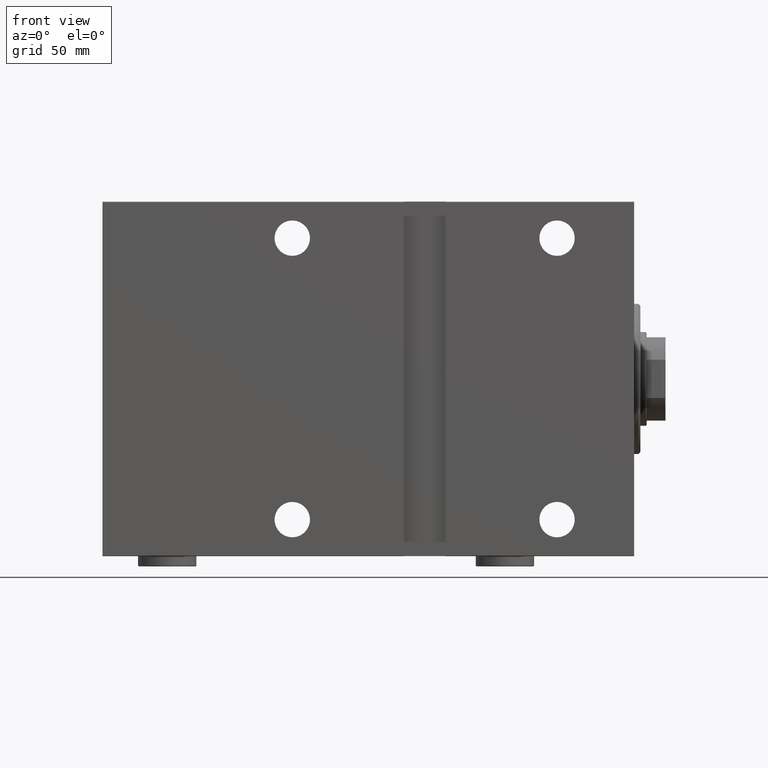
[diagram: clean part render]
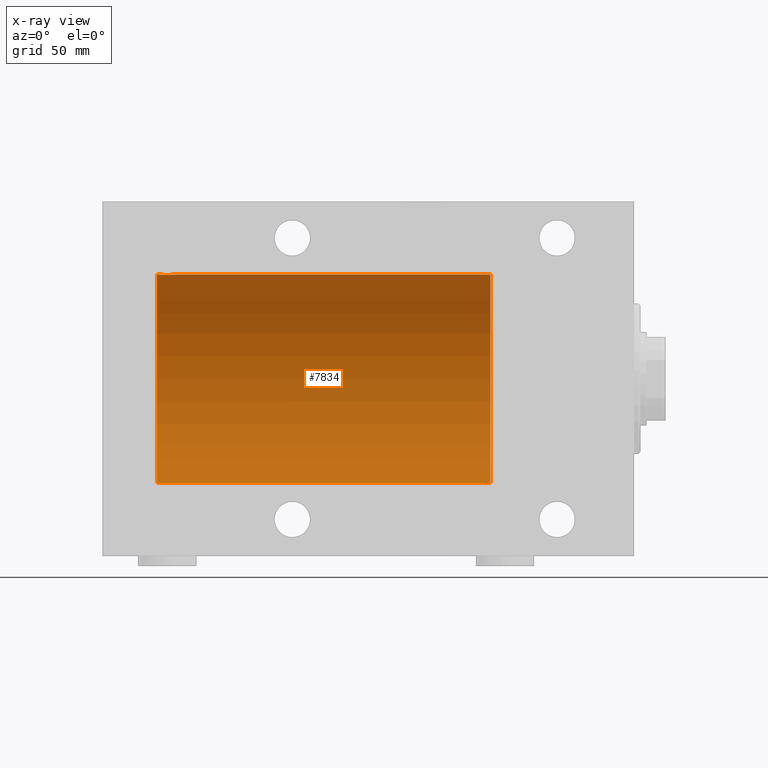
[diagram: x-ray — body ghosted, one internal face saturated and labeled with its STEP entity id]
A machine part, front view, then the same camera in x-ray: the body is ghosted and one INTERNAL B-rep face — a face not visible from any outside direction — is saturated and labeled: STEP entity #7834.
In plain terms, the highlighted cylindrical surface (partial cylindrical patch) has radius 50 mm, axis along (1, 0, -0).
Its self-contained STEP definition (entity closure, byte-faithful):
#269 = VERTEX_POINT ( 'NONE', #28648 ) ;
#1124 = B_SPLINE_CURVE_WITH_KNOTS ( 'NONE', 3,
 ( #30271, #37106, #30708, #40965, #9758, #30044, #26860, #9325, #20237, #43708, #19786, #16148, #5680, #23212, #36884, #43938, #12277, #5901, #26403, #22751, #16597, #27072, #19566, #33695, #34151, #33480, #36651, #12950, #2259, #40520, #44382, #12727, #26186, #2482 ),
 .UNSPECIFIED., .F., .F.,
 ( 4, 2, 2, 2, 2, 2, 2, 2, 2, 2, 2, 2, 2, 2, 2, 2, 4 ),
 ( 0.01329343152928752492, 0.01412407817529631217, 0.01495472482130509942, 0.01578537146731388494, 0.01661601811332267392, 0.01744666475933145944, 0.01827731140534024495, 0.01910795805134903047, 0.01993860469735781946, 0.02076925134336660844, 0.02159989798937539396, 0.02243054463538417947, 0.02326119128139296499, 0.02409183792740175398, 0.02492248457341053949, 0.02575313121941932848, 0.02658377786542811400 ),
 .UNSPECIFIED. ) ;
#1682 = FACE_OUTER_BOUND ( 'NONE', #14446, .T. ) ;
#1730 = CARTESIAN_POINT ( 'NONE',  ( 229.0000000000000000, 0.000000000000000000, 50.00000000000000000 ) ) ;
#2259 = CARTESIAN_POINT ( 'NONE',  ( 227.8183924898787609, -1.886522330773425793, 49.96505190380066352 ) ) ;
#2482 = CARTESIAN_POINT ( 'NONE',  ( 228.2500000000000284, 4.321082864718244794E-15, 50.00000000000000000 ) ) ;
#4475 = LINE ( 'NONE', #1730, #26799 ) ;
#5680 = CARTESIAN_POINT ( 'NONE',  ( 222.1125526060720290, -3.818052230167745531, 49.85412671291930309 ) ) ;
#5901 = CARTESIAN_POINT ( 'NONE',  ( 224.2772492703792011, -4.250219976861668414, 49.81902879621013369 ) ) ;
#7834 = ADVANCED_FACE ( 'NONE', ( #1682 ), #28360, .F. ) ;
#8504 = LINE ( 'NONE', #39251, #39585 ) ;
#9325 = CARTESIAN_POINT ( 'NONE',  ( 220.6211828273626452, -2.593114840406137933, 49.93325460257641879 ) ) ;
#9758 = CARTESIAN_POINT ( 'NONE',  ( 219.9672735790269087, -1.369753890039655309, 49.98188917176553048 ) ) ;
#10164 = DIRECTION ( 'NONE',  ( -1.000000000000000000, 0.000000000000000000, 0.000000000000000000 ) ) ;
#10894 = CARTESIAN_POINT ( 'NONE',  ( 229.0000000000000000, 0.000000000000000000, 50.00000000000000000 ) ) ;
#11038 = DIRECTION ( 'NONE',  ( -1.000000000000000000, -0.000000000000000000, -0.000000000000000000 ) ) ;
#11169 = VECTOR ( 'NONE', #27704, 1000.000000000000000 ) ;
#12180 = CIRCLE ( 'NONE', #16543, 50.00000000000000000 ) ;
#12277 = CARTESIAN_POINT ( 'NONE',  ( 223.7160471297329991, -4.249777379711427550, 49.81906655360197789 ) ) ;
#12387 = DIRECTION ( 'NONE',  ( 0.000000000000000000, 0.000000000000000000, 1.000000000000000000 ) ) ;
#12727 = CARTESIAN_POINT ( 'NONE',  ( 228.2224263552078014, -0.5587117664567152753, 49.99763378604802000 ) ) ;
#12950 = CARTESIAN_POINT ( 'NONE',  ( 227.6860283212195668, -2.133925816755196880, 49.95498245321557818 ) ) ;
#14446 = EDGE_LOOP ( 'NONE', ( #20163, #22105, #29640, #30129, #36320, #18817 ) ) ;
#14934 = VERTEX_POINT ( 'NONE', #37539 ) ;
#16148 = CARTESIAN_POINT ( 'NONE',  ( 221.8686360055384910, -3.687400765141549464, 49.86408552998298660 ) ) ;
#16258 = AXIS2_PLACEMENT_3D ( 'NONE', #25161, #11038, #12387 ) ;
#16543 = AXIS2_PLACEMENT_3D ( 'NONE', #36494, #36272, #43103 ) ;
#16597 = CARTESIAN_POINT ( 'NONE',  ( 225.3671064755457678, -4.033756670430872049, 49.83713703490974467 ) ) ;
#16990 = CARTESIAN_POINT ( 'NONE',  ( 229.0000000000000000, 6.123233995736764507E-15, -50.00000000000000000 ) ) ;
#17937 = CIRCLE ( 'NONE', #25229, 50.00000000000000000 ) ;
#18727 = CARTESIAN_POINT ( 'NONE',  ( 229.0000000000000000, 6.123233995736764507E-15, -50.00000000000000000 ) ) ;
#18817 = ORIENTED_EDGE ( 'NONE', *, *, #34957, .F. ) ;
#19566 = CARTESIAN_POINT ( 'NONE',  ( 226.1263164487508277, -3.690299572754739188, 49.86386974736159061 ) ) ;
#19730 = VERTEX_POINT ( 'NONE', #20407 ) ;
#19786 = CARTESIAN_POINT ( 'NONE',  ( 221.4068727911404721, -3.378657745070641205, 49.88595615988430154 ) ) ;
#19807 = EDGE_CURVE ( 'NONE', #35305, #19730, #17937, .T. ) ;
#20163 = ORIENTED_EDGE ( 'NONE', *, *, #21288, .F. ) ;
#20237 = CARTESIAN_POINT ( 'NONE',  ( 220.7969643804801194, -2.807099414226288836, 49.92152599098506727 ) ) ;
#20407 = CARTESIAN_POINT ( 'NONE',  ( 69.00000000000000000, 0.000000000000000000, 50.00000000000000000 ) ) ;
#20458 = VERTEX_POINT ( 'NONE', #18727 ) ;
#21288 = EDGE_CURVE ( 'NONE', #20458, #32090, #12180, .T. ) ;
#22105 = ORIENTED_EDGE ( 'NONE', *, *, #33760, .T. ) ;
#22751 = CARTESIAN_POINT ( 'NONE',  ( 225.0973761787904550, -4.115209769591128719, 49.83039196709102470 ) ) ;
#23212 = CARTESIAN_POINT ( 'NONE',  ( 222.6266656342097008, -4.031616700143211496, 49.83731072121799599 ) ) ;
#24642 = CARTESIAN_POINT ( 'NONE',  ( 69.00000000000000000, 6.123233995736764507E-15, -50.00000000000000000 ) ) ;
#24906 = EDGE_CURVE ( 'NONE', #14934, #19730, #4475, .T. ) ;
#25161 = CARTESIAN_POINT ( 'NONE',  ( 229.0000000000000000, 0.000000000000000000, 0.000000000000000000 ) ) ;
#25229 = AXIS2_PLACEMENT_3D ( 'NONE', #45013, #10164, #37944 ) ;
#25438 = DIRECTION ( 'NONE',  ( -1.000000000000000000, -0.000000000000000000, -0.000000000000000000 ) ) ;
#26186 = CARTESIAN_POINT ( 'NONE',  ( 228.2500000000000568, -0.2808785465865656361, 50.00000000000001421 ) ) ;
#26403 = CARTESIAN_POINT ( 'NONE',  ( 224.5540856488015322, -4.222816005855229093, 49.82138837911247009 ) ) ;
#26799 = VECTOR ( 'NONE', #25438, 1000.000000000000000 ) ;
#26860 = CARTESIAN_POINT ( 'NONE',  ( 220.3106284432061841, -2.128188802142371383, 49.95522967821975158 ) ) ;
#27072 = CARTESIAN_POINT ( 'NONE',  ( 225.8821704948444733, -3.820681512513403710, 49.85392475515401145 ) ) ;
#27704 = DIRECTION ( 'NONE',  ( -1.000000000000000000, -0.000000000000000000, -0.000000000000000000 ) ) ;
#28360 = CYLINDRICAL_SURFACE ( 'NONE', #16258, 50.00000000000000000 ) ;
#28565 = EDGE_CURVE ( 'NONE', #14934, #269, #1124, .T. ) ;
#28648 = CARTESIAN_POINT ( 'NONE',  ( 228.2500000000000284, 4.321082864718244794E-15, 50.00000000000000000 ) ) ;
#29640 = ORIENTED_EDGE ( 'NONE', *, *, #19807, .T. ) ;
#30044 = CARTESIAN_POINT ( 'NONE',  ( 220.1789941801477539, -1.881229021238131516, 49.96525240872482954 ) ) ;
#30129 = ORIENTED_EDGE ( 'NONE', *, *, #24906, .F. ) ;
#30271 = CARTESIAN_POINT ( 'NONE',  ( 219.7500000000000284, -2.480218129060122167E-23, 50.00000000000000000 ) ) ;
#30708 = CARTESIAN_POINT ( 'NONE',  ( 219.7768924720100472, -0.5531336717329087271, 49.99769193709643389 ) ) ;
#32090 = VERTEX_POINT ( 'NONE', #10894 ) ;
#32651 = DIRECTION ( 'NONE',  ( -1.000000000000000000, -0.000000000000000000, -0.000000000000000000 ) ) ;
#33480 = CARTESIAN_POINT ( 'NONE',  ( 227.1992192796128620, -2.811461347331117633, 49.92127983148852621 ) ) ;
#33695 = CARTESIAN_POINT ( 'NONE',  ( 226.5882021467620859, -3.382416624899796442, 49.88570010427955737 ) ) ;
#33760 = EDGE_CURVE ( 'NONE', #20458, #35305, #38178, .T. ) ;
#34151 = CARTESIAN_POINT ( 'NONE',  ( 226.8069783183931349, -3.203153387937335506, 49.89767833571684008 ) ) ;
#34957 = EDGE_CURVE ( 'NONE', #32090, #269, #8504, .T. ) ;
#35305 = VERTEX_POINT ( 'NONE', #24642 ) ;
#36272 = DIRECTION ( 'NONE',  ( -1.000000000000000000, 0.000000000000000000, 0.000000000000000000 ) ) ;
#36320 = ORIENTED_EDGE ( 'NONE', *, *, #28565, .T. ) ;
#36494 = CARTESIAN_POINT ( 'NONE',  ( 229.0000000000000000, 0.000000000000000000, 0.000000000000000000 ) ) ;
#36651 = CARTESIAN_POINT ( 'NONE',  ( 227.3751998408197039, -2.597781786597482157, 49.93300953359122474 ) ) ;
#36884 = CARTESIAN_POINT ( 'NONE',  ( 222.8967670396579024, -4.113647494206500888, 49.83052139214891696 ) ) ;
#37106 = CARTESIAN_POINT ( 'NONE',  ( 219.7500000000000000, -0.2773743941468524432, 50.00000000000000711 ) ) ;
#37539 = CARTESIAN_POINT ( 'NONE',  ( 219.7500000000000284, -2.480218129060122167E-23, 50.00000000000000000 ) ) ;
#37944 = DIRECTION ( 'NONE',  ( 0.000000000000000000, 0.000000000000000000, 1.000000000000000000 ) ) ;
#38178 = LINE ( 'NONE', #16990, #11169 ) ;
#39251 = CARTESIAN_POINT ( 'NONE',  ( 229.0000000000000000, 0.000000000000000000, 50.00000000000000000 ) ) ;
#39585 = VECTOR ( 'NONE', #32651, 1000.000000000000000 ) ;
#40520 = CARTESIAN_POINT ( 'NONE',  ( 228.0307979615534748, -1.375411031076047230, 49.98173289062309976 ) ) ;
#40965 = CARTESIAN_POINT ( 'NONE',  ( 219.8856808669399356, -1.101350136471749952, 49.98862054280448319 ) ) ;
#43103 = DIRECTION ( 'NONE',  ( 0.000000000000000000, 0.000000000000000000, 1.000000000000000000 ) ) ;
#43708 = CARTESIAN_POINT ( 'NONE',  ( 221.1884693348458200, -3.199146701881685040, 49.89793607725460589 ) ) ;
#43938 = CARTESIAN_POINT ( 'NONE',  ( 223.4400213230435668, -4.222042462213144276, 49.82145436824653473 ) ) ;
#44382 = CARTESIAN_POINT ( 'NONE',  ( 228.1124970108033949, -1.108337267831493556, 49.98846998601261760 ) ) ;
#45013 = CARTESIAN_POINT ( 'NONE',  ( 69.00000000000000000, 0.000000000000000000, 0.000000000000000000 ) ) ;